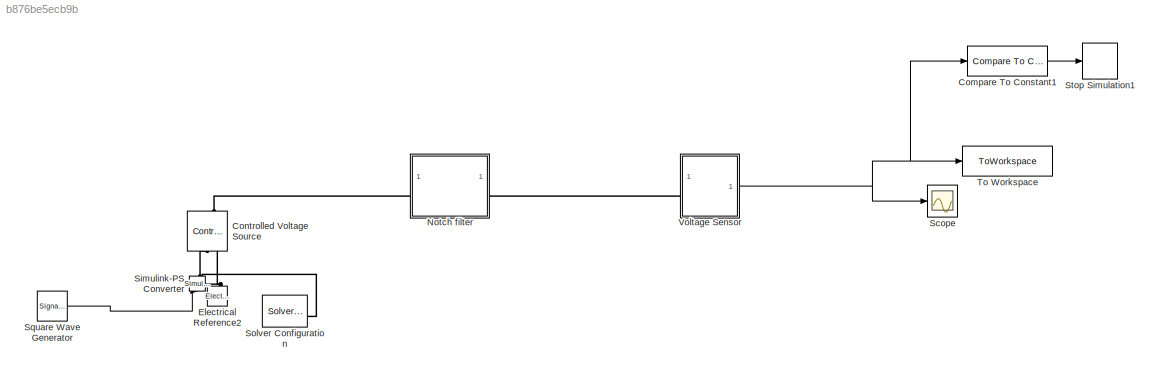
MODEL slx_b876be5ecb9b
KIND model
CONFIG AbsTol = auto
CONFIG EnableMultiTasking = off
CONFIG FixedStep = ts
CONFIG MaxStep = auto
CONFIG MinStep = auto
CONFIG RelTol = 1e-3
CONFIG SampleTimeConstraint = Unconstrained
CONFIG SolverName = ode8
CONFIG StartTime = 0.0
CONFIG StopTime = 0.01
BLOCK [Reference] Compare To Constant1  REF=simulink/Logic and Bit
Operations/Compare
To Constant
  SourceBlock = simulink/Logic and Bit\nOperations/Compare\nTo Constant
  SourceType = Compare To Constant
BLOCK [Reference] Controlled Voltage Source  REF=fl_lib/Electrical/Electrical Sources/Controlled Voltage
Source
  NameLocation = right
  SourceBlock = fl_lib/Electrical/Electrical Sources/Controlled Voltage\nSource
  SourceType = Controlled Voltage\nSource
BLOCK [Reference] Electrical Reference2  REF=fl_lib/Electrical/Electrical Elements/Electrical Reference
  NameLocation = right
  SourceBlock = fl_lib/Electrical/Electrical Elements/Electrical Reference
  SourceType = Electrical Reference
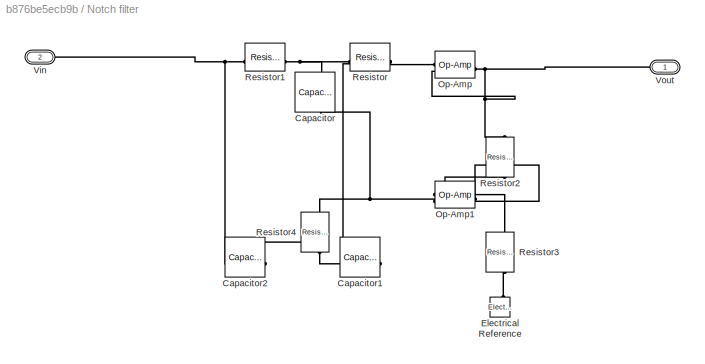
BLOCK [SubSystem] Notch filter
BLOCK [Reference] Notch filter/Capacitor  REF=fl_lib/Electrical/Electrical Elements/Capacitor
  NameLocation = left
  SourceBlock = fl_lib/Electrical/Electrical Elements/Capacitor
  SourceType = Capacitor
BLOCK [Reference] Notch filter/Capacitor1  REF=fl_lib/Electrical/Electrical Elements/Capacitor
  NameLocation = top
  SourceBlock = fl_lib/Electrical/Electrical Elements/Capacitor
  SourceType = Capacitor
BLOCK [Reference] Notch filter/Capacitor2  REF=fl_lib/Electrical/Electrical Elements/Capacitor
  NameLocation = top
  SourceBlock = fl_lib/Electrical/Electrical Elements/Capacitor
  SourceType = Capacitor
BLOCK [Reference] Notch filter/Electrical Reference  REF=fl_lib/Electrical/Electrical Elements/Electrical Reference
  NameLocation = right
  SourceBlock = fl_lib/Electrical/Electrical Elements/Electrical Reference
  SourceType = Electrical Reference
BLOCK [Reference] Notch filter/Op-Amp  REF=fl_lib/Electrical/Electrical Elements/Op-Amp
  SourceBlock = fl_lib/Electrical/Electrical Elements/Op-Amp
  SourceType = Op-Amp
BLOCK [Reference] Notch filter/Op-Amp1  REF=fl_lib/Electrical/Electrical Elements/Op-Amp
  NameLocation = top
  SourceBlock = fl_lib/Electrical/Electrical Elements/Op-Amp
  SourceType = Op-Amp
BLOCK [Reference] Notch filter/Resistor  REF=fl_lib/Electrical/Electrical Elements/Resistor
  SourceBlock = fl_lib/Electrical/Electrical Elements/Resistor
  SourceType = Resistor
BLOCK [Reference] Notch filter/Resistor1  REF=fl_lib/Electrical/Electrical Elements/Resistor
  SourceBlock = fl_lib/Electrical/Electrical Elements/Resistor
  SourceType = Resistor
BLOCK [Reference] Notch filter/Resistor2  REF=fl_lib/Electrical/Electrical Elements/Resistor
  NameLocation = left
  SourceBlock = fl_lib/Electrical/Electrical Elements/Resistor
  SourceType = Resistor
BLOCK [Reference] Notch filter/Resistor3  REF=fl_lib/Electrical/Electrical Elements/Resistor
  NameLocation = left
  SourceBlock = fl_lib/Electrical/Electrical Elements/Resistor
  SourceType = Resistor
BLOCK [Reference] Notch filter/Resistor4  REF=fl_lib/Electrical/Electrical Elements/Resistor
  NameLocation = left
  SourceBlock = fl_lib/Electrical/Electrical Elements/Resistor
  SourceType = Resistor
BLOCK [PMIOPort] Notch filter/Vin
  Port = 2
  Side = Left
BLOCK [PMIOPort] Notch filter/Vout
  Side = Right
BLOCK [Scope] Scope
  Floating = off
  NumInputPorts = 1
  ScopeSpecificationString = Simulink.scopes.TimeScopeBlockCfg('CurrentConfiguration', extmgr.ConfigurationSet(extmgr.Configuration('Core','General UI',true),extmgr.Configuration('Core','Source UI',true),extmgr.Configuration('Sources','WiredSimulink',true),extmgr.Configuration('Visuals','Time Domain',true,'SerializedDisplays',{struct('MinYLimReal','-3.49723','MaxYLimReal','1.79301','YLabelReal','','MinYLimMag','0.00000','MaxY...<+1397ch>
BLOCK [Reference] Simulink-PS Converter  REF=nesl_utility/Simulink-PS
Converter
  NameLocation = right
  SourceBlock = nesl_utility/Simulink-PS\nConverter
  SourceType = Simulink-PS\nConverter
BLOCK [Reference] Solver Configuration  REF=nesl_utility/Solver
Configuration
  SourceBlock = nesl_utility/Solver\nConfiguration
  SourceType = Solver\nConfiguration
BLOCK [SignalGenerator] Square Wave Generator
  Frequency = 27e3
  WaveForm = square
BLOCK [Stop] Stop Simulation1
BLOCK [ToWorkspace] To Workspace
  FixptAsFi = on
  MaxDataPoints = inf
  SampleTime = -1
  SaveFormat = Timeseries
  VariableName = simout
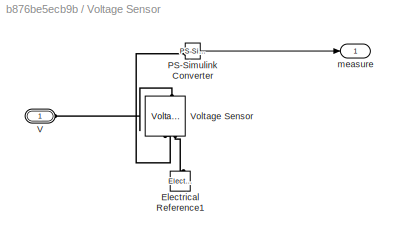
BLOCK [SubSystem] Voltage Sensor
BLOCK [Reference] Voltage Sensor/Electrical Reference1  REF=fl_lib/Electrical/Electrical Elements/Electrical Reference
  NameLocation = right
  SourceBlock = fl_lib/Electrical/Electrical Elements/Electrical Reference
  SourceType = Electrical Reference
BLOCK [Reference] Voltage Sensor/PS-Simulink Converter  REF=nesl_utility/PS-Simulink
Converter
  SourceBlock = nesl_utility/PS-Simulink\nConverter
  SourceType = PS-Simulink\nConverter
BLOCK [PMIOPort] Voltage Sensor/V  
  Side = Left
BLOCK [Reference] Voltage Sensor/Voltage Sensor  REF=fl_lib/Electrical/Electrical Sensors/Voltage Sensor
  NameLocation = right
  SourceBlock = fl_lib/Electrical/Electrical Sensors/Voltage Sensor
  SourceType = Voltage Sensor
BLOCK [Outport] Voltage Sensor/measure
LINE Compare To Constant1:1 -> Stop Simulation1:1
LINE Square Wave Generator:1 -> Simulink-PS Converter:1
LINE Voltage Sensor/PS-Simulink Converter:1 -> Voltage Sensor/measure:1
NET Voltage Sensor:1 -> Compare To Constant1:1, Scope:1, To Workspace:1
PLINE Controlled Voltage Source:LConn1 -- Notch filter:LConn1
PLINE Controlled Voltage Source:RConn1 -- Simulink-PS Converter:RConn1
PNET net1: Controlled Voltage Source:RConn2 -- Electrical Reference2:LConn1 -- Solver Configuration:RConn1
PNET net2: Notch filter/Capacitor1:LConn1 -- Notch filter/Op-Amp:LConn1 -- Notch filter/Resistor:RConn1
PNET net3: Notch filter/Capacitor1:RConn1 -- Notch filter/Capacitor2:LConn1 -- Notch filter/Resistor4:RConn1
PNET net4: Notch filter/Capacitor2:RConn1 -- Notch filter/Resistor1:LConn1 -- Notch filter/Vin:RConn1
PNET net5: Notch filter/Capacitor:LConn1 -- Notch filter/Resistor1:RConn1 -- Notch filter/Resistor:LConn1
PNET net6: Notch filter/Capacitor:RConn1 -- Notch filter/Op-Amp1:LConn2 -- Notch filter/Op-Amp1:RConn1 -- Notch filter/Resistor4:LConn1
PLINE Notch filter/Electrical Reference:LConn1 -- Notch filter/Resistor3:RConn1
PNET net7: Notch filter/Op-Amp1:LConn1 -- Notch filter/Resistor2:RConn1 -- Notch filter/Resistor3:LConn1
PNET net8: Notch filter/Op-Amp:LConn2 -- Notch filter/Op-Amp:RConn1 -- Notch filter/Resistor2:LConn1 -- Notch filter/Vout:RConn1
PLINE Notch filter:RConn1 -- Voltage Sensor:LConn1
PLINE Voltage Sensor/Electrical Reference1:LConn1 -- Voltage Sensor/Voltage Sensor:RConn2
PLINE Voltage Sensor/PS-Simulink Converter:LConn1 -- Voltage Sensor/Voltage Sensor:RConn1
PLINE Voltage Sensor/V  :RConn1 -- Voltage Sensor/Voltage Sensor:LConn1
note: NET lines group one-source signal fan-out (src -> all destinations, sorted); 1:1 wires keep LINE; PNET lines group multi-terminal physical nets as a canonical sorted terminal list (undirected conserving connections); 2-terminal nets keep the pairwise PLINE form
